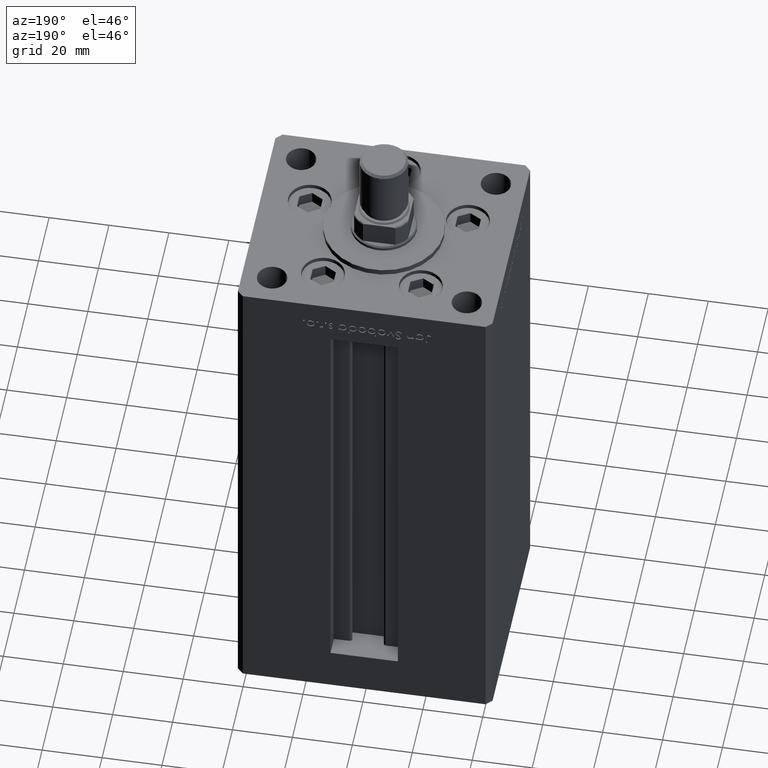
[diagram: clean part render]
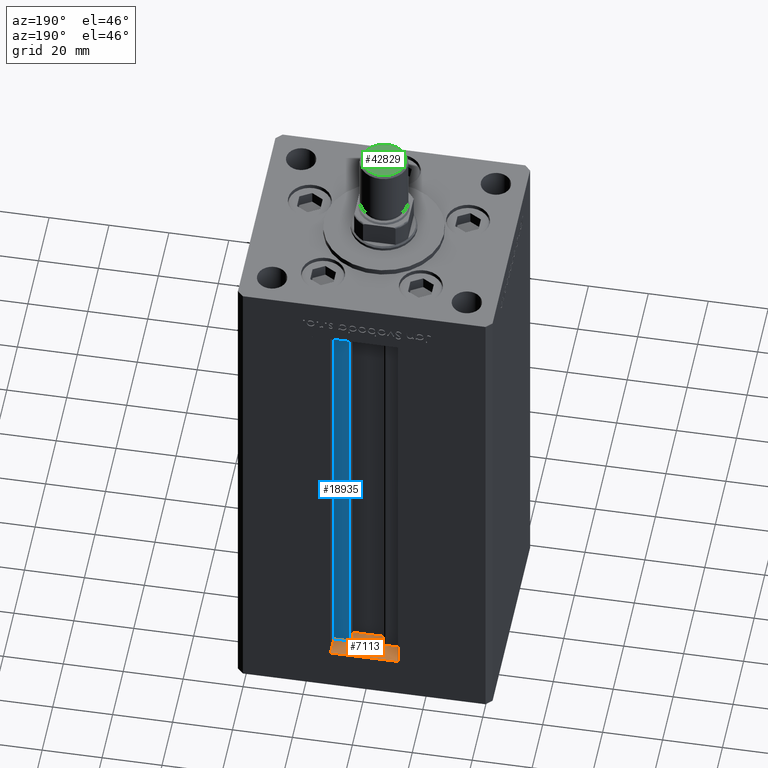
[diagram: same view with three faces highlighted in distinct colors, each labeled with its STEP entity id]
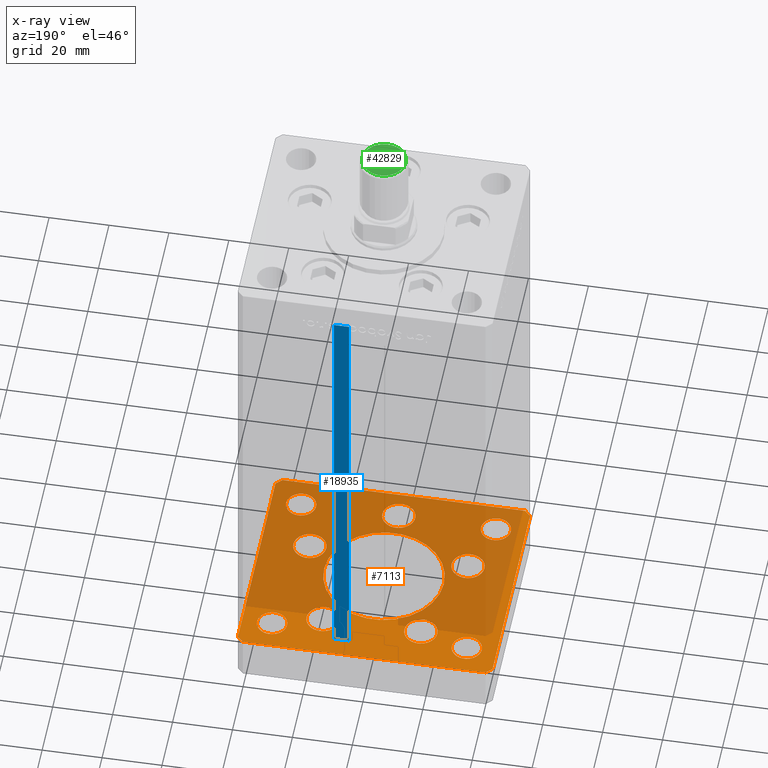
[diagram: x-ray of the same camera — body ghosted, the three highlighted faces saturated]
A machine part, auxiliary view with three faces highlighted in distinct colors.
The next image is the same camera in x-ray (body ghosted, the three faces saturated) — at least one of them is partly hidden behind the body in this view.
Their STEP definitions:

[orange] entity #7113 — the highlighted planar face has unit normal (0, 0, -1).
#47 = AXIS2_PLACEMENT_3D ( 'NONE', #4521, #21266, #25249 ) ;
#152 = AXIS2_PLACEMENT_3D ( 'NONE', #7088, #19859, #35844 ) ;
#401 = FACE_BOUND ( 'NONE', #8889, .T. ) ;
#661 = DIRECTION ( 'NONE',  ( 1.000000000000000000, 0.000000000000000000, 0.000000000000000000 ) ) ;
#1911 = LINE ( 'NONE', #30405, #21009 ) ;
#1931 = CARTESIAN_POINT ( 'NONE',  ( -31.89865316429776954, -9.333333333333337478, -15.00000000000000000 ) ) ;
#2039 = CARTESIAN_POINT ( 'NONE',  ( 31.89865316429776954, -9.333333333333330373, -15.00000000000000000 ) ) ;
#2075 = LINE ( 'NONE', #22553, #51033 ) ;
#2172 = DIRECTION ( 'NONE',  ( -1.000000000000000000, -3.426614273534436165E-16, 0.000000000000000000 ) ) ;
#2345 = CARTESIAN_POINT ( 'NONE',  ( -32.50000000000000000, 27.50000000000000355, -15.00000000000000000 ) ) ;
#2519 = VERTEX_POINT ( 'NONE', #15394 ) ;
#2610 = DIRECTION ( 'NONE',  ( 0.000000000000000000, 0.000000000000000000, 1.000000000000000000 ) ) ;
#2710 = EDGE_CURVE ( 'NONE', #45811, #19685, #26036, .T. ) ;
#2860 = DIRECTION ( 'NONE',  ( -0.7071067811865463515, -0.7071067811865487940, 0.000000000000000000 ) ) ;
#2879 = DIRECTION ( 'NONE',  ( 1.000000000000000000, 0.000000000000000000, 0.000000000000000000 ) ) ;
#3884 = FACE_BOUND ( 'NONE', #36375, .T. ) ;
#4264 = VERTEX_POINT ( 'NONE', #1931 ) ;
#4409 = AXIS2_PLACEMENT_3D ( 'NONE', #43707, #7211, #24224 ) ;
#4509 = DIRECTION ( 'NONE',  ( 1.000000000000000000, 0.000000000000000000, 0.000000000000000000 ) ) ;
#4521 = CARTESIAN_POINT ( 'NONE',  ( -32.50000000000000000, -27.49999999999999645, -15.00000000000000000 ) ) ;
#4651 = DIRECTION ( 'NONE',  ( 0.000000000000000000, -0.000000000000000000, -1.000000000000000000 ) ) ;
#4769 = ORIENTED_EDGE ( 'NONE', *, *, #6406, .F. ) ;
#4843 = LINE ( 'NONE', #32818, #19318 ) ;
#4888 = VERTEX_POINT ( 'NONE', #38039 ) ;
#4913 = AXIS2_PLACEMENT_3D ( 'NONE', #30968, #47485, #14193 ) ;
#4957 = CARTESIAN_POINT ( 'NONE',  ( 42.49999999999992895, 35.50000000000000000, -15.00000000000000000 ) ) ;
#5233 = EDGE_CURVE ( 'NONE', #7239, #34190, #4843, .T. ) ;
#5547 = EDGE_CURVE ( 'NONE', #35347, #37670, #16501, .T. ) ;
#5756 = CIRCLE ( 'NONE', #52522, 5.000000000000000888 ) ;
#5794 = CIRCLE ( 'NONE', #4913, 4.999999999999997335 ) ;
#5870 = CIRCLE ( 'NONE', #22014, 20.00000000000000000 ) ;
#6012 = ORIENTED_EDGE ( 'NONE', *, *, #39772, .F. ) ;
#6141 = DIRECTION ( 'NONE',  ( 1.000000000000000000, 0.000000000000000000, 0.000000000000000000 ) ) ;
#6406 = EDGE_CURVE ( 'NONE', #14780, #41355, #1911, .T. ) ;
#7088 = CARTESIAN_POINT ( 'NONE',  ( 16.32291334290542295, 22.75000000000000000, -15.00000000000000000 ) ) ;
#7113 = ADVANCED_FACE ( 'NONE', ( #36101, #36619, #3884, #20113, #401, #52358, #20373, #15589, #12652, #28090, #36367 ), #48105, .F. ) ;
#7211 = DIRECTION ( 'NONE',  ( 0.000000000000000000, 0.000000000000000000, 1.000000000000000000 ) ) ;
#7239 = VERTEX_POINT ( 'NONE', #9443 ) ;
#7325 = AXIS2_PLACEMENT_3D ( 'NONE', #28784, #12560, #29587 ) ;
#7452 = ORIENTED_EDGE ( 'NONE', *, *, #5233, .F. ) ;
#7910 = CARTESIAN_POINT ( 'NONE',  ( 42.50000000000000711, -35.50000000000000000, -15.00000000000000000 ) ) ;
#8466 = DIRECTION ( 'NONE',  ( 1.000000000000000000, 0.000000000000000000, 0.000000000000000000 ) ) ;
#8502 = ORIENTED_EDGE ( 'NONE', *, *, #5547, .F. ) ;
#8889 = EDGE_LOOP ( 'NONE', ( #10187, #50633 ) ) ;
#9313 = AXIS2_PLACEMENT_3D ( 'NONE', #17144, #33399, #38706 ) ;
#9443 = CARTESIAN_POINT ( 'NONE',  ( -40.49999999999999289, -37.50000000000002132, -15.00000000000000000 ) ) ;
#9688 = EDGE_LOOP ( 'NONE', ( #42586, #26074 ) ) ;
#9750 = DIRECTION ( 'NONE',  ( 1.000000000000000000, 0.000000000000000000, 0.000000000000000000 ) ) ;
#9806 = EDGE_CURVE ( 'NONE', #49423, #17738, #5756, .T. ) ;
#10187 = ORIENTED_EDGE ( 'NONE', *, *, #44351, .F. ) ;
#10192 = VERTEX_POINT ( 'NONE', #51015 ) ;
#10368 = EDGE_CURVE ( 'NONE', #15237, #4888, #5794, .T. ) ;
#11398 = AXIS2_PLACEMENT_3D ( 'NONE', #16729, #49241, #25223 ) ;
#11549 = CARTESIAN_POINT ( 'NONE',  ( -20.00000000000000000, 2.449293598294706513E-15, -15.00000000000000000 ) ) ;
#11707 = CARTESIAN_POINT ( 'NONE',  ( 32.50000000000000000, 27.49999999999999645, -15.00000000000000000 ) ) ;
#11798 = DIRECTION ( 'NONE',  ( 0.000000000000000000, -0.000000000000000000, -1.000000000000000000 ) ) ;
#11829 = VECTOR ( 'NONE', #31844, 1000.000000000000114 ) ;
#12048 = ORIENTED_EDGE ( 'NONE', *, *, #17832, .F. ) ;
#12116 = EDGE_CURVE ( 'NONE', #45652, #16399, #14304, .T. ) ;
#12146 = CARTESIAN_POINT ( 'NONE',  ( 27.50000000000000355, 27.49999999999999645, -15.00000000000000000 ) ) ;
#12419 = VERTEX_POINT ( 'NONE', #43243 ) ;
#12560 = DIRECTION ( 'NONE',  ( 0.000000000000000000, -0.000000000000000000, -1.000000000000000000 ) ) ;
#12652 = FACE_OUTER_BOUND ( 'NONE', #34563, .T. ) ;
#13204 = LINE ( 'NONE', #4957, #45934 ) ;
#13328 = AXIS2_PLACEMENT_3D ( 'NONE', #11707, #16735, #32997 ) ;
#13471 = ORIENTED_EDGE ( 'NONE', *, *, #43604, .F. ) ;
#13820 = EDGE_CURVE ( 'NONE', #27266, #12419, #5870, .T. ) ;
#14193 = DIRECTION ( 'NONE',  ( -1.000000000000000000, 0.000000000000000000, 0.000000000000000000 ) ) ;
#14304 = CIRCLE ( 'NONE', #50889, 5.500000000000000000 ) ;
#14506 = VERTEX_POINT ( 'NONE', #40674 ) ;
#14598 = ORIENTED_EDGE ( 'NONE', *, *, #41610, .F. ) ;
#14780 = VERTEX_POINT ( 'NONE', #36355 ) ;
#15237 = VERTEX_POINT ( 'NONE', #45733 ) ;
#15358 = EDGE_CURVE ( 'NONE', #34190, #35347, #47837, .T. ) ;
#15359 = DIRECTION ( 'NONE',  ( 1.000000000000000000, 0.000000000000000000, 0.000000000000000000 ) ) ;
#15394 = CARTESIAN_POINT ( 'NONE',  ( -20.89865316429777309, -9.333333333333337478, -15.00000000000000000 ) ) ;
#15477 = EDGE_LOOP ( 'NONE', ( #6012, #51946 ) ) ;
#15525 = CIRCLE ( 'NONE', #23170, 5.500000000000000000 ) ;
#15589 = FACE_BOUND ( 'NONE', #9688, .T. ) ;
#16399 = VERTEX_POINT ( 'NONE', #40759 ) ;
#16501 = LINE ( 'NONE', #28738, #26143 ) ;
#16579 = EDGE_CURVE ( 'NONE', #4888, #15237, #32287, .T. ) ;
#16729 = CARTESIAN_POINT ( 'NONE',  ( 3.429011037612589276E-15, -28.00000000000000000, -15.00000000000000000 ) ) ;
#16735 = DIRECTION ( 'NONE',  ( 0.000000000000000000, 0.000000000000000000, 1.000000000000000000 ) ) ;
#16908 = ORIENTED_EDGE ( 'NONE', *, *, #12116, .F. ) ;
#16993 = CIRCLE ( 'NONE', #9313, 5.499999999999998224 ) ;
#17144 = CARTESIAN_POINT ( 'NONE',  ( -26.39865316429776954, -9.333333333333337478, -15.00000000000000000 ) ) ;
#17466 = CARTESIAN_POINT ( 'NONE',  ( 21.82291334290542650, 22.75000000000000000, -15.00000000000000000 ) ) ;
#17738 = VERTEX_POINT ( 'NONE', #22047 ) ;
#17832 = EDGE_CURVE ( 'NONE', #41355, #50833, #2075, .T. ) ;
#17901 = ORIENTED_EDGE ( 'NONE', *, *, #2710, .F. ) ;
#18538 = DIRECTION ( 'NONE',  ( 0.000000000000000000, -0.000000000000000000, -1.000000000000000000 ) ) ;
#19318 = VECTOR ( 'NONE', #20551, 1000.000000000000000 ) ;
#19369 = EDGE_CURVE ( 'NONE', #36236, #44209, #39166, .T. ) ;
#19685 = VERTEX_POINT ( 'NONE', #2039 ) ;
#19859 = DIRECTION ( 'NONE',  ( 0.000000000000000000, -0.000000000000000000, -1.000000000000000000 ) ) ;
#20113 = FACE_BOUND ( 'NONE', #29779, .T. ) ;
#20373 = FACE_BOUND ( 'NONE', #50883, .T. ) ;
#20551 = DIRECTION ( 'NONE',  ( 1.000000000000000000, 1.713307136767217096E-16, 0.000000000000000000 ) ) ;
#20659 = VERTEX_POINT ( 'NONE', #52088 ) ;
#21009 = VECTOR ( 'NONE', #2172, 1000.000000000000000 ) ;
#21266 = DIRECTION ( 'NONE',  ( -0.000000000000000000, -0.000000000000000000, -1.000000000000000000 ) ) ;
#21311 = DIRECTION ( 'NONE',  ( -0.000000000000000000, -0.000000000000000000, -1.000000000000000000 ) ) ;
#21619 = CIRCLE ( 'NONE', #11398, 5.500000000000000000 ) ;
#21774 = AXIS2_PLACEMENT_3D ( 'NONE', #39678, #35940, #43679 ) ;
#22010 = ORIENTED_EDGE ( 'NONE', *, *, #28233, .F. ) ;
#22014 = AXIS2_PLACEMENT_3D ( 'NONE', #46250, #18538, #9750 ) ;
#22047 = CARTESIAN_POINT ( 'NONE',  ( -37.50000000000000711, 27.50000000000000355, -15.00000000000000000 ) ) ;
#22352 = CIRCLE ( 'NONE', #23173, 20.00000000000000000 ) ;
#22354 = ORIENTED_EDGE ( 'NONE', *, *, #35073, .F. ) ;
#22553 = CARTESIAN_POINT ( 'NONE',  ( -40.50000000000000711, 37.49999999999997868, -15.00000000000000000 ) ) ;
#23096 = DIRECTION ( 'NONE',  ( 0.000000000000000000, -0.000000000000000000, -1.000000000000000000 ) ) ;
#23153 = CARTESIAN_POINT ( 'NONE',  ( 10.82291334290542473, 22.75000000000000000, -15.00000000000000000 ) ) ;
#23170 = AXIS2_PLACEMENT_3D ( 'NONE', #32712, #41221, #8466 ) ;
#23173 = AXIS2_PLACEMENT_3D ( 'NONE', #48299, #11798, #28019 ) ;
#23388 = ORIENTED_EDGE ( 'NONE', *, *, #49158, .T. ) ;
#23486 = AXIS2_PLACEMENT_3D ( 'NONE', #46803, #30804, #26775 ) ;
#23973 = CIRCLE ( 'NONE', #152, 5.500000000000001776 ) ;
#24028 = CARTESIAN_POINT ( 'NONE',  ( 20.89865316429777309, -9.333333333333330373, -15.00000000000000000 ) ) ;
#24224 = DIRECTION ( 'NONE',  ( 1.000000000000000000, 0.000000000000000000, 0.000000000000000000 ) ) ;
#24225 = VERTEX_POINT ( 'NONE', #12146 ) ;
#24609 = CARTESIAN_POINT ( 'NONE',  ( 0.000000000000000000, 0.000000000000000000, -15.00000000000000000 ) ) ;
#24905 = AXIS2_PLACEMENT_3D ( 'NONE', #40063, #21311, #28054 ) ;
#25015 = AXIS2_PLACEMENT_3D ( 'NONE', #40988, #46041, #4509 ) ;
#25223 = DIRECTION ( 'NONE',  ( 1.000000000000000000, 0.000000000000000000, 0.000000000000000000 ) ) ;
#25249 = DIRECTION ( 'NONE',  ( -1.000000000000000000, 0.000000000000000000, 0.000000000000000000 ) ) ;
#25673 = CIRCLE ( 'NONE', #4409, 5.000000000000000888 ) ;
#25940 = CARTESIAN_POINT ( 'NONE',  ( 40.50000000000000000, -37.50000000000000711, -15.00000000000000000 ) ) ;
#26021 = EDGE_CURVE ( 'NONE', #4264, #2519, #16993, .T. ) ;
#26036 = CIRCLE ( 'NONE', #23486, 5.499999999999998224 ) ;
#26074 = ORIENTED_EDGE ( 'NONE', *, *, #32541, .T. ) ;
#26143 = VECTOR ( 'NONE', #44222, 1000.000000000000000 ) ;
#26775 = DIRECTION ( 'NONE',  ( 1.000000000000000000, 0.000000000000000000, 0.000000000000000000 ) ) ;
#27266 = VERTEX_POINT ( 'NONE', #11549 ) ;
#27560 = ORIENTED_EDGE ( 'NONE', *, *, #15358, .F. ) ;
#28019 = DIRECTION ( 'NONE',  ( 1.000000000000000000, 0.000000000000000000, 0.000000000000000000 ) ) ;
#28054 = DIRECTION ( 'NONE',  ( -1.000000000000000000, 0.000000000000000000, 0.000000000000000000 ) ) ;
#28090 = FACE_BOUND ( 'NONE', #39686, .T. ) ;
#28233 = EDGE_CURVE ( 'NONE', #37670, #14780, #13204, .T. ) ;
#28320 = CARTESIAN_POINT ( 'NONE',  ( -42.50000000000000711, 35.49999999999997158, -15.00000000000000000 ) ) ;
#28379 = CARTESIAN_POINT ( 'NONE',  ( -40.50000000000000711, 37.49999999999997868, -15.00000000000000000 ) ) ;
#28485 = ORIENTED_EDGE ( 'NONE', *, *, #13820, .F. ) ;
#28557 = EDGE_LOOP ( 'NONE', ( #50598, #14598 ) ) ;
#28738 = CARTESIAN_POINT ( 'NONE',  ( 42.50000000000000711, -35.50000000000000000, -15.00000000000000000 ) ) ;
#28784 = CARTESIAN_POINT ( 'NONE',  ( -16.32291334290543006, 22.74999999999999645, -15.00000000000000000 ) ) ;
#28875 = DIRECTION ( 'NONE',  ( -0.000000000000000000, 0.000000000000000000, 1.000000000000000000 ) ) ;
#29123 = EDGE_CURVE ( 'NONE', #2519, #4264, #31519, .T. ) ;
#29436 = DIRECTION ( 'NONE',  ( -0.7071067811865474617, 0.7071067811865474617, 0.000000000000000000 ) ) ;
#29587 = DIRECTION ( 'NONE',  ( 1.000000000000000000, 0.000000000000000000, 0.000000000000000000 ) ) ;
#29779 = EDGE_LOOP ( 'NONE', ( #41516, #17901 ) ) ;
#29805 = AXIS2_PLACEMENT_3D ( 'NONE', #43359, #23096, #2879 ) ;
#30069 = CARTESIAN_POINT ( 'NONE',  ( 42.49999999999992895, 35.50000000000000000, -15.00000000000000000 ) ) ;
#30381 = DIRECTION ( 'NONE',  ( 0.7071067811865463515, -0.7071067811865487940, 0.000000000000000000 ) ) ;
#30405 = CARTESIAN_POINT ( 'NONE',  ( 40.49999999999991473, 37.50000000000000711, -15.00000000000000000 ) ) ;
#30804 = DIRECTION ( 'NONE',  ( 0.000000000000000000, -0.000000000000000000, -1.000000000000000000 ) ) ;
#30968 = CARTESIAN_POINT ( 'NONE',  ( 32.50000000000000000, -27.49999999999999645, -15.00000000000000000 ) ) ;
#31199 = CIRCLE ( 'NONE', #13328, 4.999999999999997335 ) ;
#31203 = EDGE_CURVE ( 'NONE', #19685, #45811, #43493, .T. ) ;
#31359 = EDGE_LOOP ( 'NONE', ( #45518, #34429 ) ) ;
#31519 = CIRCLE ( 'NONE', #29805, 5.499999999999998224 ) ;
#31844 = DIRECTION ( 'NONE',  ( 0.7071067811865474617, 0.7071067811865474617, 0.000000000000000000 ) ) ;
#32287 = CIRCLE ( 'NONE', #44188, 4.999999999999997335 ) ;
#32541 = EDGE_CURVE ( 'NONE', #17738, #49423, #25673, .T. ) ;
#32603 = DIRECTION ( 'NONE',  ( 9.773090005503140331E-17, -1.000000000000000000, 0.000000000000000000 ) ) ;
#32632 = CARTESIAN_POINT ( 'NONE',  ( 40.50000000000000000, -37.50000000000000711, -15.00000000000000000 ) ) ;
#32712 = CARTESIAN_POINT ( 'NONE',  ( -16.32291334290543006, 22.74999999999999645, -15.00000000000000000 ) ) ;
#32818 = CARTESIAN_POINT ( 'NONE',  ( -40.49999999999999289, -37.50000000000002132, -15.00000000000000000 ) ) ;
#32997 = DIRECTION ( 'NONE',  ( 1.000000000000000000, 0.000000000000000000, 0.000000000000000000 ) ) ;
#33021 = EDGE_CURVE ( 'NONE', #44118, #49577, #23973, .T. ) ;
#33399 = DIRECTION ( 'NONE',  ( 0.000000000000000000, -0.000000000000000000, -1.000000000000000000 ) ) ;
#33731 = CARTESIAN_POINT ( 'NONE',  ( -27.50000000000000000, -27.49999999999999645, -15.00000000000000000 ) ) ;
#34190 = VERTEX_POINT ( 'NONE', #25940 ) ;
#34429 = ORIENTED_EDGE ( 'NONE', *, *, #26021, .F. ) ;
#34563 = EDGE_LOOP ( 'NONE', ( #35392, #49590, #12048, #4769, #22010, #8502, #27560, #7452 ) ) ;
#35018 = AXIS2_PLACEMENT_3D ( 'NONE', #46092, #37836, #6141 ) ;
#35073 = EDGE_CURVE ( 'NONE', #12419, #27266, #22352, .T. ) ;
#35347 = VERTEX_POINT ( 'NONE', #7910 ) ;
#35392 = ORIENTED_EDGE ( 'NONE', *, *, #52679, .F. ) ;
#35844 = DIRECTION ( 'NONE',  ( 1.000000000000000000, 0.000000000000000000, 0.000000000000000000 ) ) ;
#35940 = DIRECTION ( 'NONE',  ( 0.000000000000000000, 0.000000000000000000, 1.000000000000000000 ) ) ;
#35941 = CARTESIAN_POINT ( 'NONE',  ( -37.50000000000000711, -27.49999999999999645, -15.00000000000000000 ) ) ;
#36101 = FACE_BOUND ( 'NONE', #46673, .T. ) ;
#36218 = VECTOR ( 'NONE', #30381, 1000.000000000000000 ) ;
#36236 = VERTEX_POINT ( 'NONE', #33731 ) ;
#36355 = CARTESIAN_POINT ( 'NONE',  ( 40.49999999999991473, 37.50000000000000711, -15.00000000000000000 ) ) ;
#36367 = FACE_BOUND ( 'NONE', #28557, .T. ) ;
#36375 = EDGE_LOOP ( 'NONE', ( #13471, #16908 ) ) ;
#36619 = FACE_BOUND ( 'NONE', #31359, .T. ) ;
#37670 = VERTEX_POINT ( 'NONE', #30069 ) ;
#37836 = DIRECTION ( 'NONE',  ( 0.000000000000000000, -0.000000000000000000, -1.000000000000000000 ) ) ;
#38018 = VECTOR ( 'NONE', #32603, 1000.000000000000000 ) ;
#38039 = CARTESIAN_POINT ( 'NONE',  ( 27.50000000000000355, -27.49999999999999645, -15.00000000000000000 ) ) ;
#38379 = LINE ( 'NONE', #50625, #36218 ) ;
#38706 = DIRECTION ( 'NONE',  ( 1.000000000000000000, 0.000000000000000000, 0.000000000000000000 ) ) ;
#39166 = CIRCLE ( 'NONE', #47, 5.000000000000004441 ) ;
#39678 = CARTESIAN_POINT ( 'NONE',  ( 32.50000000000000000, 27.49999999999999645, -15.00000000000000000 ) ) ;
#39686 = EDGE_LOOP ( 'NONE', ( #39979, #45540 ) ) ;
#39772 = EDGE_CURVE ( 'NONE', #20659, #14506, #15525, .T. ) ;
#39899 = CARTESIAN_POINT ( 'NONE',  ( -5.499999999999996447, -28.00000000000000000, -15.00000000000000000 ) ) ;
#39979 = ORIENTED_EDGE ( 'NONE', *, *, #10368, .F. ) ;
#40063 = CARTESIAN_POINT ( 'NONE',  ( -32.50000000000000000, -27.49999999999999645, -15.00000000000000000 ) ) ;
#40674 = CARTESIAN_POINT ( 'NONE',  ( -21.82291334290543361, 22.74999999999999645, -15.00000000000000000 ) ) ;
#40759 = CARTESIAN_POINT ( 'NONE',  ( 5.500000000000003553, -28.00000000000000000, -15.00000000000000000 ) ) ;
#40988 = CARTESIAN_POINT ( 'NONE',  ( 16.32291334290542295, 22.75000000000000000, -15.00000000000000000 ) ) ;
#41137 = CARTESIAN_POINT ( 'NONE',  ( 3.429011037612589276E-15, -28.00000000000000000, -15.00000000000000000 ) ) ;
#41221 = DIRECTION ( 'NONE',  ( 0.000000000000000000, -0.000000000000000000, -1.000000000000000000 ) ) ;
#41355 = VERTEX_POINT ( 'NONE', #28379 ) ;
#41516 = ORIENTED_EDGE ( 'NONE', *, *, #31203, .F. ) ;
#41610 = EDGE_CURVE ( 'NONE', #44209, #36236, #47918, .T. ) ;
#42049 = VERTEX_POINT ( 'NONE', #43875 ) ;
#42586 = ORIENTED_EDGE ( 'NONE', *, *, #9806, .T. ) ;
#42614 = DIRECTION ( 'NONE',  ( -0.000000000000000000, -0.000000000000000000, -1.000000000000000000 ) ) ;
#43032 = CIRCLE ( 'NONE', #21774, 4.999999999999997335 ) ;
#43243 = CARTESIAN_POINT ( 'NONE',  ( 20.00000000000000000, 0.000000000000000000, -15.00000000000000000 ) ) ;
#43359 = CARTESIAN_POINT ( 'NONE',  ( -26.39865316429776954, -9.333333333333337478, -15.00000000000000000 ) ) ;
#43396 = CARTESIAN_POINT ( 'NONE',  ( 32.50000000000000000, -27.49999999999999645, -15.00000000000000000 ) ) ;
#43493 = CIRCLE ( 'NONE', #35018, 5.499999999999998224 ) ;
#43604 = EDGE_CURVE ( 'NONE', #16399, #45652, #21619, .T. ) ;
#43679 = DIRECTION ( 'NONE',  ( 1.000000000000000000, 0.000000000000000000, 0.000000000000000000 ) ) ;
#43707 = CARTESIAN_POINT ( 'NONE',  ( -32.50000000000000000, 27.50000000000000355, -15.00000000000000000 ) ) ;
#43873 = CARTESIAN_POINT ( 'NONE',  ( -27.50000000000000000, 27.50000000000000355, -15.00000000000000000 ) ) ;
#43875 = CARTESIAN_POINT ( 'NONE',  ( -42.50000000000000000, -35.50000000000000711, -15.00000000000000000 ) ) ;
#44099 = DIRECTION ( 'NONE',  ( 1.000000000000000000, 0.000000000000000000, 0.000000000000000000 ) ) ;
#44118 = VERTEX_POINT ( 'NONE', #23153 ) ;
#44188 = AXIS2_PLACEMENT_3D ( 'NONE', #43396, #42614, #50868 ) ;
#44209 = VERTEX_POINT ( 'NONE', #35941 ) ;
#44222 = DIRECTION ( 'NONE',  ( -1.172770800660376741E-15, 1.000000000000000000, 0.000000000000000000 ) ) ;
#44351 = EDGE_CURVE ( 'NONE', #49577, #44118, #49691, .T. ) ;
#45358 = ORIENTED_EDGE ( 'NONE', *, *, #51707, .T. ) ;
#45518 = ORIENTED_EDGE ( 'NONE', *, *, #29123, .F. ) ;
#45540 = ORIENTED_EDGE ( 'NONE', *, *, #16579, .F. ) ;
#45652 = VERTEX_POINT ( 'NONE', #39899 ) ;
#45733 = CARTESIAN_POINT ( 'NONE',  ( 37.50000000000000000, -27.49999999999999645, -15.00000000000000000 ) ) ;
#45811 = VERTEX_POINT ( 'NONE', #24028 ) ;
#45934 = VECTOR ( 'NONE', #29436, 1000.000000000000114 ) ;
#46041 = DIRECTION ( 'NONE',  ( 0.000000000000000000, -0.000000000000000000, -1.000000000000000000 ) ) ;
#46092 = CARTESIAN_POINT ( 'NONE',  ( 26.39865316429776954, -9.333333333333330373, -15.00000000000000000 ) ) ;
#46250 = CARTESIAN_POINT ( 'NONE',  ( 0.000000000000000000, 0.000000000000000000, -15.00000000000000000 ) ) ;
#46505 = CIRCLE ( 'NONE', #7325, 5.500000000000000000 ) ;
#46673 = EDGE_LOOP ( 'NONE', ( #22354, #28485 ) ) ;
#46803 = CARTESIAN_POINT ( 'NONE',  ( 26.39865316429776954, -9.333333333333330373, -15.00000000000000000 ) ) ;
#47147 = CARTESIAN_POINT ( 'NONE',  ( -42.50000000000000711, 35.49999999999997158, -15.00000000000000000 ) ) ;
#47469 = AXIS2_PLACEMENT_3D ( 'NONE', #24609, #28875, #44099 ) ;
#47485 = DIRECTION ( 'NONE',  ( -0.000000000000000000, -0.000000000000000000, -1.000000000000000000 ) ) ;
#47837 = LINE ( 'NONE', #32632, #11829 ) ;
#47918 = CIRCLE ( 'NONE', #24905, 5.000000000000004441 ) ;
#48105 = PLANE ( 'NONE',  #47469 ) ;
#48299 = CARTESIAN_POINT ( 'NONE',  ( 0.000000000000000000, 0.000000000000000000, -15.00000000000000000 ) ) ;
#49158 = EDGE_CURVE ( 'NONE', #10192, #24225, #43032, .T. ) ;
#49241 = DIRECTION ( 'NONE',  ( 0.000000000000000000, -0.000000000000000000, -1.000000000000000000 ) ) ;
#49423 = VERTEX_POINT ( 'NONE', #43873 ) ;
#49577 = VERTEX_POINT ( 'NONE', #17466 ) ;
#49590 = ORIENTED_EDGE ( 'NONE', *, *, #52141, .F. ) ;
#49691 = CIRCLE ( 'NONE', #25015, 5.500000000000001776 ) ;
#50223 = EDGE_CURVE ( 'NONE', #14506, #20659, #46505, .T. ) ;
#50598 = ORIENTED_EDGE ( 'NONE', *, *, #19369, .F. ) ;
#50625 = CARTESIAN_POINT ( 'NONE',  ( -42.50000000000000000, -35.50000000000000711, -15.00000000000000000 ) ) ;
#50633 = ORIENTED_EDGE ( 'NONE', *, *, #33021, .F. ) ;
#50833 = VERTEX_POINT ( 'NONE', #47147 ) ;
#50868 = DIRECTION ( 'NONE',  ( -1.000000000000000000, 0.000000000000000000, 0.000000000000000000 ) ) ;
#50883 = EDGE_LOOP ( 'NONE', ( #23388, #45358 ) ) ;
#50889 = AXIS2_PLACEMENT_3D ( 'NONE', #41137, #4651, #661 ) ;
#51015 = CARTESIAN_POINT ( 'NONE',  ( 37.50000000000000000, 27.49999999999999645, -15.00000000000000000 ) ) ;
#51033 = VECTOR ( 'NONE', #2860, 1000.000000000000000 ) ;
#51707 = EDGE_CURVE ( 'NONE', #24225, #10192, #31199, .T. ) ;
#51946 = ORIENTED_EDGE ( 'NONE', *, *, #50223, .F. ) ;
#52088 = CARTESIAN_POINT ( 'NONE',  ( -10.82291334290543183, 22.74999999999999645, -15.00000000000000000 ) ) ;
#52141 = EDGE_CURVE ( 'NONE', #50833, #42049, #52590, .T. ) ;
#52358 = FACE_BOUND ( 'NONE', #15477, .T. ) ;
#52522 = AXIS2_PLACEMENT_3D ( 'NONE', #2345, #2610, #15359 ) ;
#52590 = LINE ( 'NONE', #28320, #38018 ) ;
#52679 = EDGE_CURVE ( 'NONE', #42049, #7239, #38379, .T. ) ;

[blue] entity #18935 — the highlighted planar face has unit normal (0, -1, 0).
#904 = EDGE_CURVE ( 'NONE', #22241, #45704, #30254, .T. ) ;
#3577 = VECTOR ( 'NONE', #28146, 1000.000000000000000 ) ;
#3622 = CARTESIAN_POINT ( 'NONE',  ( 11.25000000000000000, 30.99999999999999289, 148.5000000000000000 ) ) ;
#3804 = DIRECTION ( 'NONE',  ( 0.000000000000000000, -0.000000000000000000, -1.000000000000000000 ) ) ;
#5635 = DIRECTION ( 'NONE',  ( 1.000000000000000000, 0.000000000000000000, 0.000000000000000000 ) ) ;
#7261 = VECTOR ( 'NONE', #34521, 1000.000000000000000 ) ;
#8605 = VERTEX_POINT ( 'NONE', #11961 ) ;
#8748 = CARTESIAN_POINT ( 'NONE',  ( 6.183333333333999704, 30.99999999999999289, 0.000000000000000000 ) ) ;
#9530 = EDGE_CURVE ( 'NONE', #11069, #45704, #45243, .T. ) ;
#10266 = VECTOR ( 'NONE', #5635, 1000.000000000000000 ) ;
#10836 = VECTOR ( 'NONE', #24970, 1000.000000000000000 ) ;
#11069 = VERTEX_POINT ( 'NONE', #28669 ) ;
#11399 = LINE ( 'NONE', #27365, #3577 ) ;
#11961 = CARTESIAN_POINT ( 'NONE',  ( 11.25000000000000000, 30.99999999999999289, 0.000000000000000000 ) ) ;
#13229 = CARTESIAN_POINT ( 'NONE',  ( 6.183333333333999704, 30.99999999999999289, 148.5000000000000000 ) ) ;
#15501 = CARTESIAN_POINT ( 'NONE',  ( 6.183333333333999704, 30.99999999999999289, 0.000000000000000000 ) ) ;
#15764 = FACE_OUTER_BOUND ( 'NONE', #35694, .T. ) ;
#17747 = ORIENTED_EDGE ( 'NONE', *, *, #37055, .F. ) ;
#18935 = ADVANCED_FACE ( 'NONE', ( #15764 ), #52542, .F. ) ;
#19173 = EDGE_CURVE ( 'NONE', #11069, #8605, #50903, .T. ) ;
#22241 = VERTEX_POINT ( 'NONE', #3622 ) ;
#22642 = CARTESIAN_POINT ( 'NONE',  ( 6.183333333333999704, 30.99999999999999289, 0.000000000000000000 ) ) ;
#24970 = DIRECTION ( 'NONE',  ( -0.000000000000000000, -0.000000000000000000, 1.000000000000000000 ) ) ;
#27365 = CARTESIAN_POINT ( 'NONE',  ( 11.25000000000000000, 30.99999999999999289, 0.000000000000000000 ) ) ;
#28146 = DIRECTION ( 'NONE',  ( -0.000000000000000000, -0.000000000000000000, 1.000000000000000000 ) ) ;
#28669 = CARTESIAN_POINT ( 'NONE',  ( 6.183333333333999704, 30.99999999999999289, 0.000000000000000000 ) ) ;
#30254 = LINE ( 'NONE', #33998, #7261 ) ;
#33998 = CARTESIAN_POINT ( 'NONE',  ( 0.000000000000000000, 30.99999999999999289, 148.5000000000000000 ) ) ;
#34521 = DIRECTION ( 'NONE',  ( -1.000000000000000000, 0.000000000000000000, 0.000000000000000000 ) ) ;
#35694 = EDGE_LOOP ( 'NONE', ( #17747, #42792, #42628, #50546 ) ) ;
#35770 = AXIS2_PLACEMENT_3D ( 'NONE', #15501, #36016, #3804 ) ;
#36016 = DIRECTION ( 'NONE',  ( 0.000000000000000000, -1.000000000000000000, 0.000000000000000000 ) ) ;
#37055 = EDGE_CURVE ( 'NONE', #8605, #22241, #11399, .T. ) ;
#42628 = ORIENTED_EDGE ( 'NONE', *, *, #9530, .T. ) ;
#42792 = ORIENTED_EDGE ( 'NONE', *, *, #19173, .F. ) ;
#45243 = LINE ( 'NONE', #8748, #10836 ) ;
#45704 = VERTEX_POINT ( 'NONE', #13229 ) ;
#50546 = ORIENTED_EDGE ( 'NONE', *, *, #904, .F. ) ;
#50903 = LINE ( 'NONE', #22642, #10266 ) ;
#52542 = PLANE ( 'NONE',  #35770 ) ;

[green] entity #42829 — the highlighted planar face has unit normal (0, 0, -1).
#117 = AXIS2_PLACEMENT_3D ( 'NONE', #33891, #42140, #21891 ) ;
#8506 = VERTEX_POINT ( 'NONE', #31935 ) ;
#12213 = DIRECTION ( 'NONE',  ( 1.000000000000000000, 0.000000000000000000, -0.000000000000000000 ) ) ;
#14327 = DIRECTION ( 'NONE',  ( 1.000000000000000000, 0.000000000000000000, 0.000000000000000000 ) ) ;
#16082 = CIRCLE ( 'NONE', #48417, 7.199999999999987743 ) ;
#20710 = CARTESIAN_POINT ( 'NONE',  ( 0.000000000000000000, 0.000000000000000000, 0.000000000000000000 ) ) ;
#21132 = VERTEX_POINT ( 'NONE', #22151 ) ;
#21138 = EDGE_CURVE ( 'NONE', #8506, #21132, #31597, .T. ) ;
#21891 = DIRECTION ( 'NONE',  ( 1.000000000000000000, 0.000000000000000000, 0.000000000000000000 ) ) ;
#22151 = CARTESIAN_POINT ( 'NONE',  ( -7.199999999999987743, 9.307315673519877571E-16, 0.000000000000000000 ) ) ;
#22762 = ORIENTED_EDGE ( 'NONE', *, *, #21138, .T. ) ;
#24371 = EDGE_LOOP ( 'NONE', ( #22762, #45248 ) ) ;
#24691 = EDGE_CURVE ( 'NONE', #21132, #8506, #16082, .T. ) ;
#26543 = CARTESIAN_POINT ( 'NONE',  ( 0.000000000000000000, 0.000000000000000000, 0.000000000000000000 ) ) ;
#29228 = FACE_OUTER_BOUND ( 'NONE', #24371, .T. ) ;
#30305 = DIRECTION ( 'NONE',  ( -0.000000000000000000, -0.000000000000000000, -1.000000000000000000 ) ) ;
#31597 = CIRCLE ( 'NONE', #117, 7.199999999999987743 ) ;
#31935 = CARTESIAN_POINT ( 'NONE',  ( 7.199999999999987743, 0.000000000000000000, 0.000000000000000000 ) ) ;
#33891 = CARTESIAN_POINT ( 'NONE',  ( 0.000000000000000000, 0.000000000000000000, 0.000000000000000000 ) ) ;
#34339 = AXIS2_PLACEMENT_3D ( 'NONE', #20710, #36964, #12213 ) ;
#36964 = DIRECTION ( 'NONE',  ( 0.000000000000000000, 0.000000000000000000, 1.000000000000000000 ) ) ;
#37233 = PLANE ( 'NONE',  #34339 ) ;
#42140 = DIRECTION ( 'NONE',  ( -0.000000000000000000, -0.000000000000000000, -1.000000000000000000 ) ) ;
#42829 = ADVANCED_FACE ( 'NONE', ( #29228 ), #37233, .F. ) ;
#45248 = ORIENTED_EDGE ( 'NONE', *, *, #24691, .T. ) ;
#48417 = AXIS2_PLACEMENT_3D ( 'NONE', #26543, #30305, #14327 ) ;